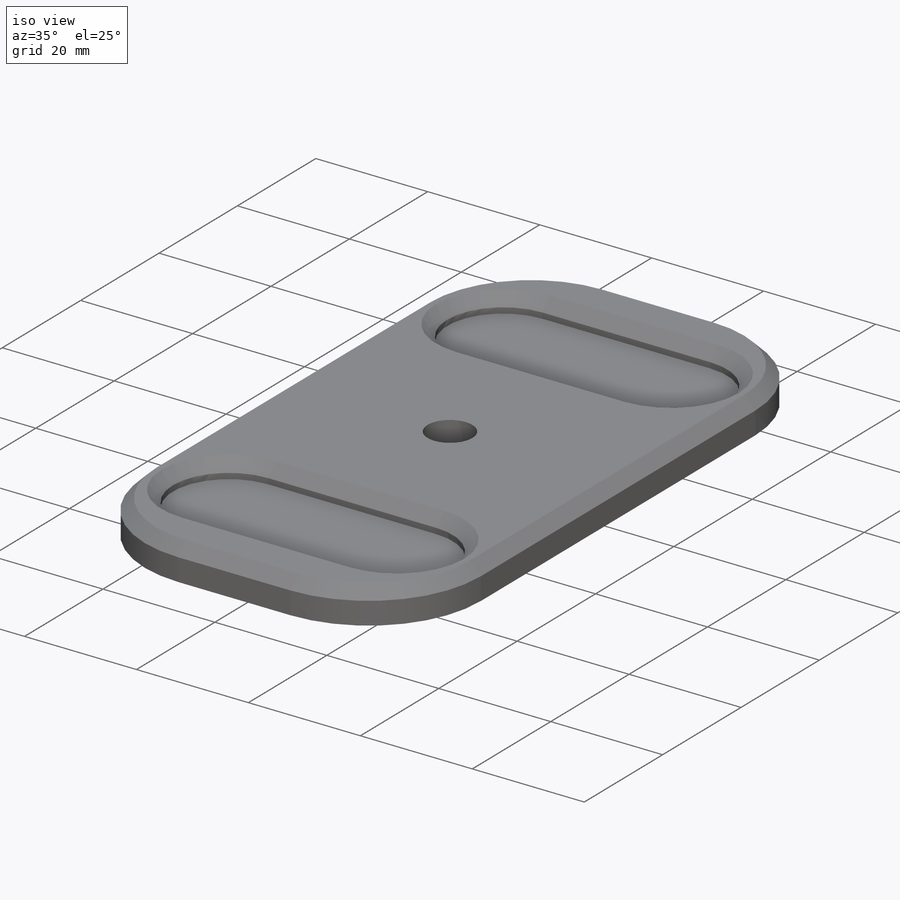
[diagram: iso view]
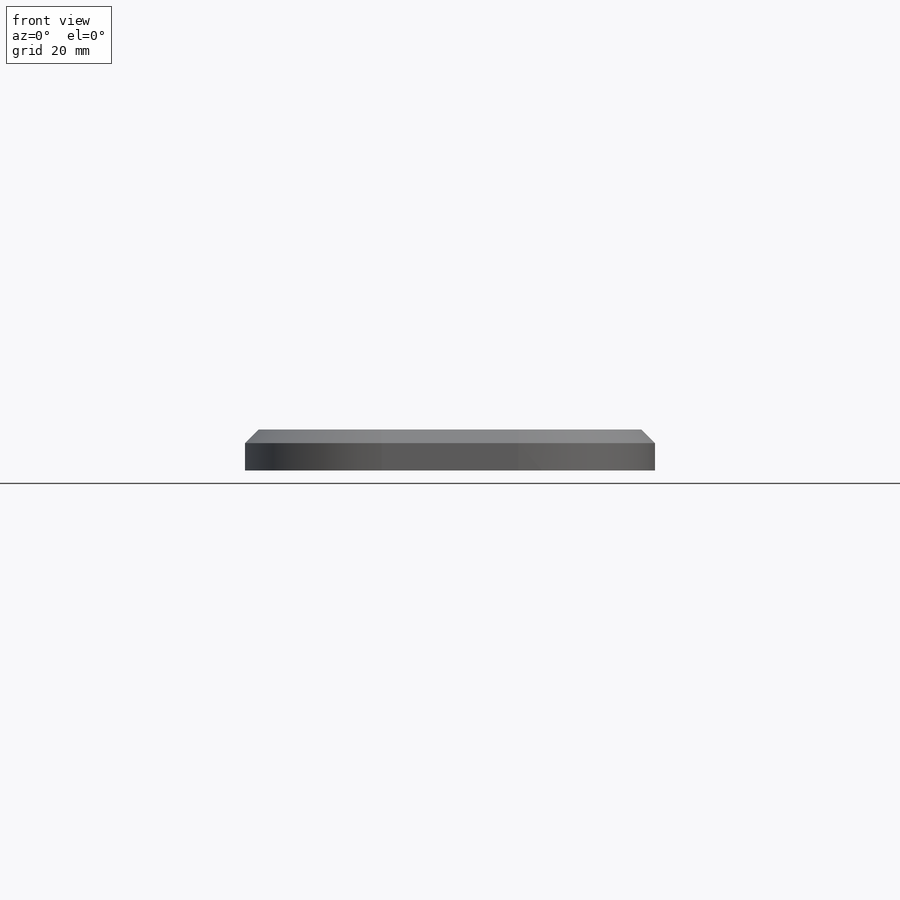
[diagram: front view]
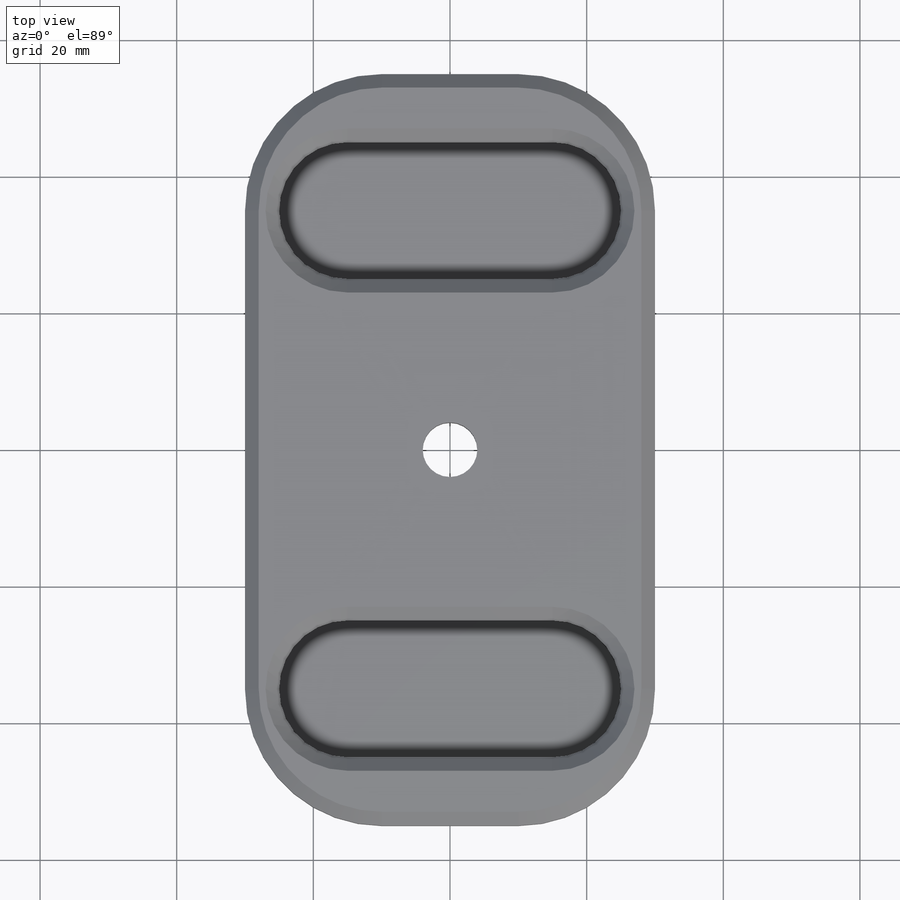
[diagram: top view]
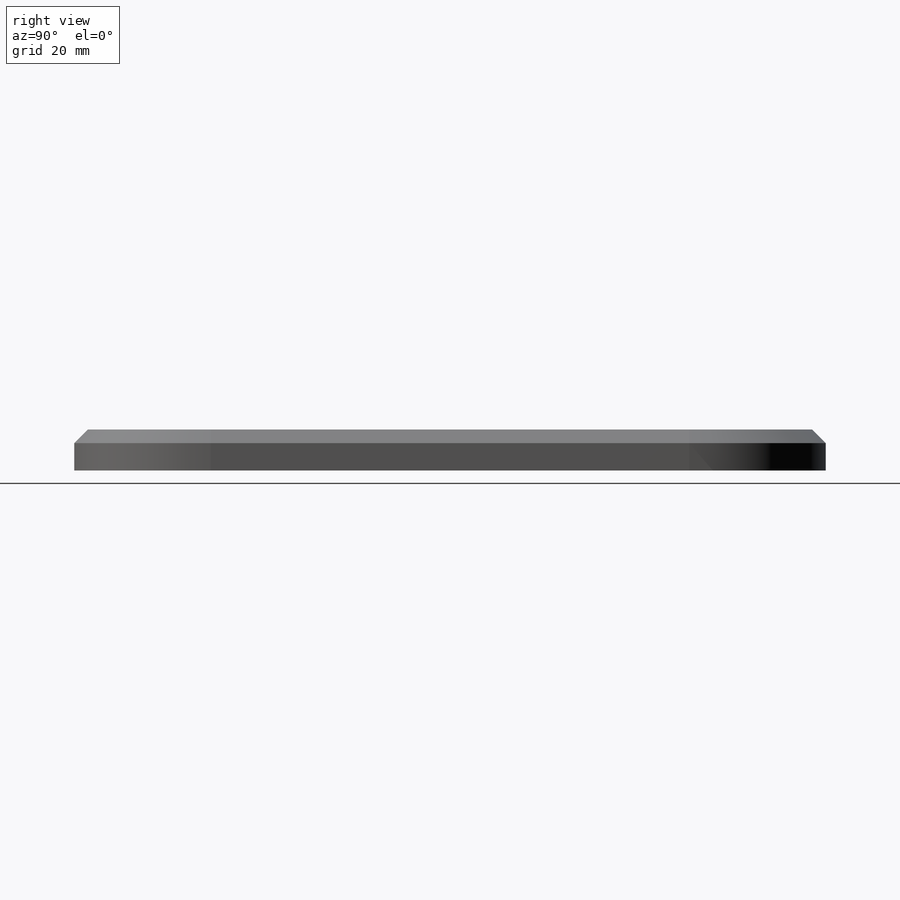
[diagram: right view]
SOLIDWORKS PART (.sldprt)
format: sldprt  version: not decoded by parser v0  size: 420,864 bytes
history: native  units: mm
features: sketch x8, extrude x4, cut_extrude x4, chamfer x3, mirror x2, fillet x2, material x1 (+13 scaffold rows collapsed)
feature tree (37):
  scaffold x13  (default folders/planes/origin — collapsed)
  material  "Material <not specified>"
  sketch  "Sketch1"  dims[c1.D1=762.0mm c1.D2=508.0mm c1.D3=381.0mm c1.D4=70.0mm c1.D5=508.0mm c1.D6=381.0mm c1.D7=1524.0mm c2.D1=60.0mm c2.D2=80.0mm c2.D3=~45.745429mm c2.D4=~45.745429mm c3.D3=30.0mm c3.D4=~14.639219mm c3.D5=100.0mm c4.D3=15.0mm c4.D4=30.0mm c4.D5=15.0mm c4.D6=20.0mm]
  extrude  "Boss-Extrude1"  Depth=3mm
  mirror  "Mirror1"
  sketch  "Sketch2"
  extrude  "Boss-Extrude2"  Depth=3mm
  sketch  "Sketch4"  dims[D1=5.0mm D2=5.0mm]
  cut_extrude  "Cut-Extrude1"  Depth=10mm
  chamfer  "Chamfer2"  Distance=15mm Angle=45deg
  sketch  "Sketch5"  dims[D1=65.0mm D2=70.0mm]
  cut_extrude  "Cut-Extrude2"  Depth=3mm
  fillet  "Fillet3"  Radius=20mm
  chamfer  "Chamfer3"  Distance=1mm Angle=45deg
  sketch  "Sketch6"  dims[D1=55.0mm]
  cut_extrude  "Cut-Extrude3"  Depth=100mm
  mirror  "Mirror4"
  sketch  "Sketch7"  dims[D1=55.0mm D2=0.0mm D3=20.0mm D4=30.0mm D5=25.0mm]
  extrude  "Boss-Extrude3"  [1 undecoded]
  sketch  "Sketch8"
  extrude  "Boss-Extrude4"  [1 undecoded]
  fillet  "Fillet4"  Radius=20mm
  chamfer  "Chamfer4"  Distance=2mm Angle=45deg
  sketch  "Sketch9"  dims[D1=~4.608769mm]
  cut_extrude  "Cut-Extrude4"  Depth=10mm
decode coverage: 17 of 23 modeling features carry decoded parameters
note: ~ marks probable driven/reference dimensions
note: 2 parameter values undecoded
note: suppression state not decoded; provenance and decode notes live in map.json
